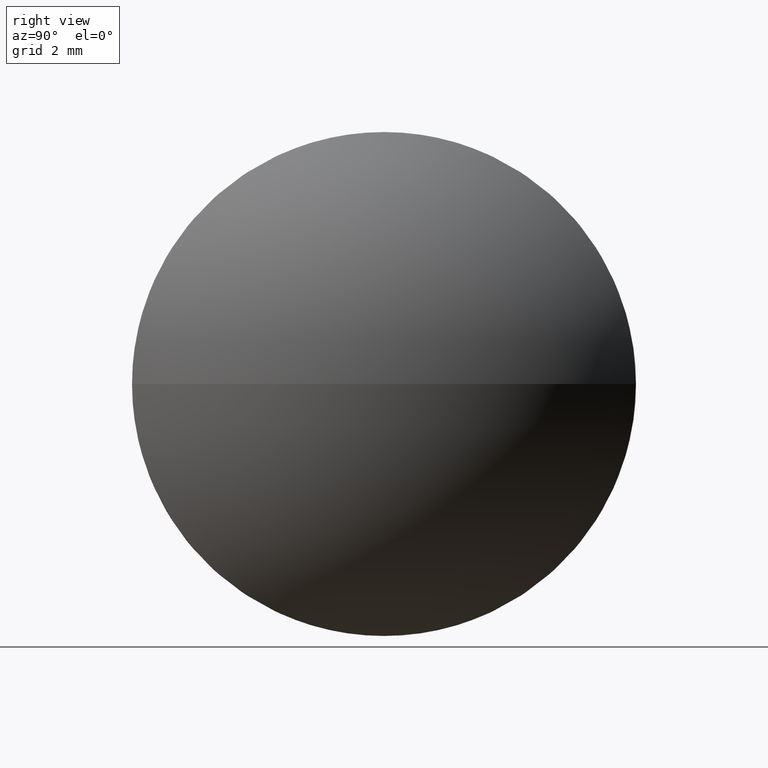
[diagram: clean part render]
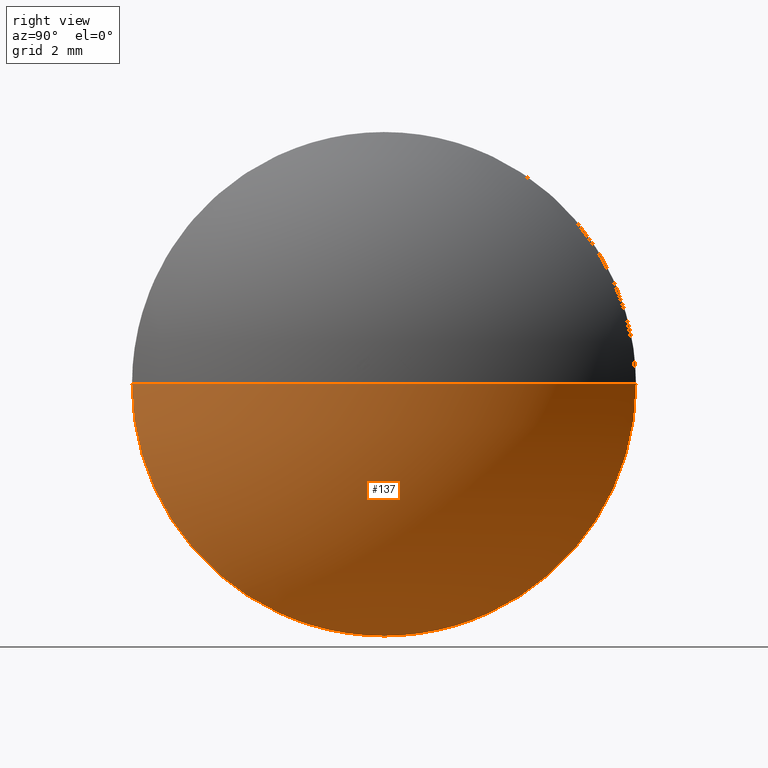
[diagram: same view with one face highlighted and labeled with its STEP entity id]
A machine part, right view. The second image highlights one B-rep face of the part: STEP entity #137.
In plain terms, the highlighted spherical surface has radius 9.4514 mm.
Its self-contained STEP definition (entity closure, byte-faithful):
#6 = DIRECTION ( 'NONE',  ( -1.000000000000000000, -0.0000000000000000000, -0.0000000000000000000 ) ) ;
#9 = AXIS2_PLACEMENT_3D ( 'NONE', #138, #83, #160 ) ;
#21 = DIRECTION ( 'NONE',  ( 0.0000000000000000000, 1.224646799147353200E-016, -1.000000000000000000 ) ) ;
#22 = CIRCLE ( 'NONE', #44, 7.500000000000007100 ) ;
#25 = EDGE_LOOP ( 'NONE', ( #181, #73, #55, #186 ) ) ;
#26 = EDGE_CURVE ( 'NONE', #33, #170, #61, .T. ) ;
#33 = VERTEX_POINT ( 'NONE', #50 ) ;
#40 = CARTESIAN_POINT ( 'NONE',  ( 377.5009013255557300, 56.89119272010739800, -7.500000000000007100 ) ) ;
#44 = AXIS2_PLACEMENT_3D ( 'NONE', #172, #6, #131 ) ;
#47 = CARTESIAN_POINT ( 'NONE',  ( 377.5009013255557300, 56.89119272010739800, 0.0000000000000000000 ) ) ;
#49 = EDGE_CURVE ( 'NONE', #170, #132, #22, .T. ) ;
#50 = CARTESIAN_POINT ( 'NONE',  ( 377.5009013255557300, 64.39119272010739800, 0.0000000000000000000 ) ) ;
#55 = ORIENTED_EDGE ( 'NONE', *, *, #49, .F. ) ;
#61 = CIRCLE ( 'NONE', #154, 7.500000000000007100 ) ;
#65 = DIRECTION ( 'NONE',  ( 0.0000000000000000000, 0.0000000000000000000, 1.000000000000000000 ) ) ;
#69 = DIRECTION ( 'NONE',  ( 0.0000000000000000000, 1.000000000000000000, 1.224646799147352700E-016 ) ) ;
#73 = ORIENTED_EDGE ( 'NONE', *, *, #108, .T. ) ;
#74 = AXIS2_PLACEMENT_3D ( 'NONE', #164, #21, #69 ) ;
#77 = DIRECTION ( 'NONE',  ( -1.000000000000000000, -0.0000000000000000000, -0.0000000000000000000 ) ) ;
#81 = DIRECTION ( 'NONE',  ( -0.0000000000000000000, 0.0000000000000000000, 1.000000000000000000 ) ) ;
#83 = DIRECTION ( 'NONE',  ( -0.0000000000000000000, 0.0000000000000000000, -1.000000000000000000 ) ) ;
#84 = VERTEX_POINT ( 'NONE', #116 ) ;
#85 = CIRCLE ( 'NONE', #74, 9.451351351351396700 ) ;
#91 = SPHERICAL_SURFACE ( 'NONE', #9, 9.451351351351393100 ) ;
#96 = FACE_OUTER_BOUND ( 'NONE', #25, .T. ) ;
#108 = EDGE_CURVE ( 'NONE', #84, #132, #85, .T. ) ;
#116 = CARTESIAN_POINT ( 'NONE',  ( 381.2009013255557200, 56.89119272010739100, 0.0000000000000000000 ) ) ;
#117 = EDGE_CURVE ( 'NONE', #84, #33, #151, .T. ) ;
#125 = AXIS2_PLACEMENT_3D ( 'NONE', #183, #81, #139 ) ;
#131 = DIRECTION ( 'NONE',  ( 0.0000000000000000000, 0.0000000000000000000, 1.000000000000000000 ) ) ;
#132 = VERTEX_POINT ( 'NONE', #179 ) ;
#137 = ADVANCED_FACE ( 'NONE', ( #96 ), #91, .T. ) ;
#138 = CARTESIAN_POINT ( 'NONE',  ( 371.7495499742043400, 56.89119272010739100, 0.0000000000000000000 ) ) ;
#139 = DIRECTION ( 'NONE',  ( 1.000000000000000000, 0.0000000000000000000, 0.0000000000000000000 ) ) ;
#151 = CIRCLE ( 'NONE', #125, 9.451351351351389600 ) ;
#154 = AXIS2_PLACEMENT_3D ( 'NONE', #47, #77, #65 ) ;
#160 = DIRECTION ( 'NONE',  ( 0.0000000000000000000, 1.000000000000000000, 0.0000000000000000000 ) ) ;
#164 = CARTESIAN_POINT ( 'NONE',  ( 371.7495499742043400, 56.89119272010739100, 0.0000000000000000000 ) ) ;
#170 = VERTEX_POINT ( 'NONE', #40 ) ;
#172 = CARTESIAN_POINT ( 'NONE',  ( 377.5009013255557300, 56.89119272010739800, 0.0000000000000000000 ) ) ;
#179 = CARTESIAN_POINT ( 'NONE',  ( 377.5009013255557300, 49.39119272010739100, -9.184850993605151900E-016 ) ) ;
#181 = ORIENTED_EDGE ( 'NONE', *, *, #117, .F. ) ;
#183 = CARTESIAN_POINT ( 'NONE',  ( 371.7495499742043400, 56.89119272010739100, 0.0000000000000000000 ) ) ;
#186 = ORIENTED_EDGE ( 'NONE', *, *, #26, .F. ) ;